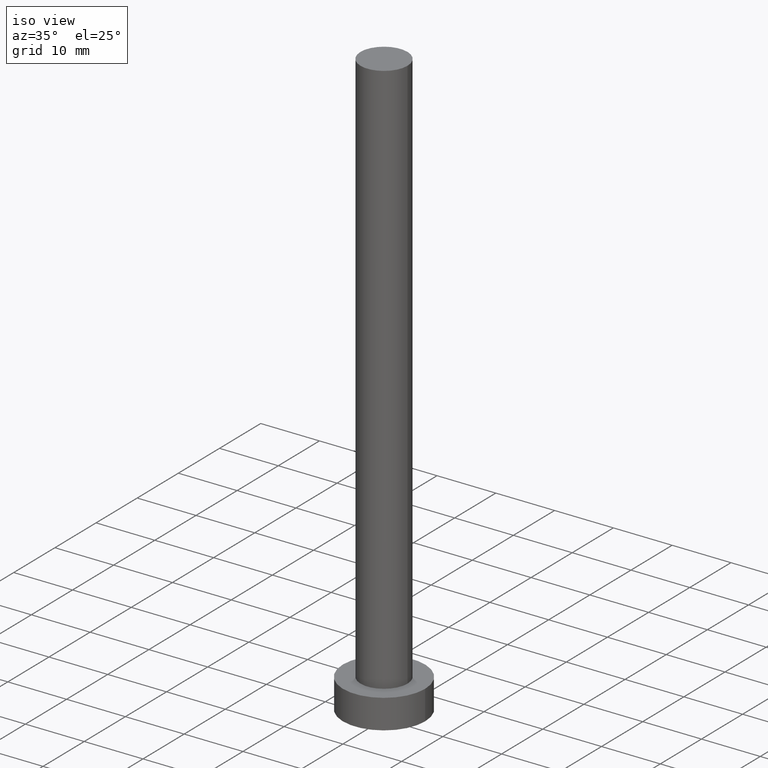
[diagram: clean part render]
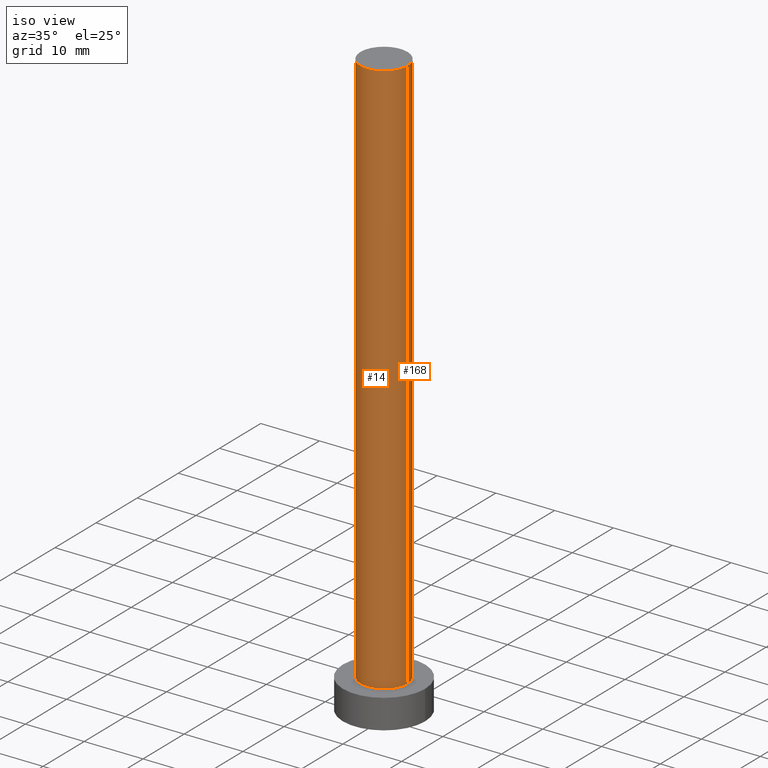
[diagram: same view with one multi-face feature highlighted, each face labeled with its STEP entity id]
A machine part, iso view. The highlighted faces form ONE feature: a constant-radius fillet chain: 2 tangent blend faces with common blend radius 4 mm. The faces share edges in the B-rep.
Their STEP definitions:
[1] entity #168 (Cylinder):
#4 = EDGE_CURVE ( 'NONE', #101, #65, #156, .T. ) ;
#10 = CYLINDRICAL_SURFACE ( 'NONE', #176, 4.000000000000000000 ) ;
#16 = CARTESIAN_POINT ( 'NONE',  ( 4.000000000000000000, 4.898587196589412829E-16, 100.0000000000000000 ) ) ;
#21 = ORIENTED_EDGE ( 'NONE', *, *, #191, .T. ) ;
#32 = VECTOR ( 'NONE', #246, 1000.000000000000000 ) ;
#37 = EDGE_CURVE ( 'NONE', #209, #101, #213, .T. ) ;
#38 = ORIENTED_EDGE ( 'NONE', *, *, #37, .F. ) ;
#50 = AXIS2_PLACEMENT_3D ( 'NONE', #234, #143, #198 ) ;
#57 = CARTESIAN_POINT ( 'NONE',  ( 0.000000000000000000, 0.000000000000000000, 100.0000000000000000 ) ) ;
#65 = VERTEX_POINT ( 'NONE', #73 ) ;
#73 = CARTESIAN_POINT ( 'NONE',  ( -4.000000000000000000, 0.000000000000000000, 5.000000000000000000 ) ) ;
#84 = EDGE_LOOP ( 'NONE', ( #38, #21, #161, #203 ) ) ;
#94 = DIRECTION ( 'NONE',  ( -1.000000000000000000, 0.000000000000000000, 0.000000000000000000 ) ) ;
#101 = VERTEX_POINT ( 'NONE', #217 ) ;
#104 = CIRCLE ( 'NONE', #50, 4.000000000000000000 ) ;
#113 = CARTESIAN_POINT ( 'NONE',  ( 0.000000000000000000, 0.000000000000000000, 100.0000000000000000 ) ) ;
#125 = CARTESIAN_POINT ( 'NONE',  ( 4.000000000000000000, 4.898587196589412829E-16, 5.000000000000000000 ) ) ;
#132 = DIRECTION ( 'NONE',  ( -0.000000000000000000, -0.000000000000000000, -1.000000000000000000 ) ) ;
#134 = LINE ( 'NONE', #16, #232 ) ;
#143 = DIRECTION ( 'NONE',  ( 0.000000000000000000, 0.000000000000000000, 1.000000000000000000 ) ) ;
#156 = LINE ( 'NONE', #220, #32 ) ;
#161 = ORIENTED_EDGE ( 'NONE', *, *, #236, .T. ) ;
#168 = ADVANCED_FACE ( 'NONE', ( #189 ), #10, .T. ) ;
#173 = DIRECTION ( 'NONE',  ( 0.000000000000000000, 0.000000000000000000, 1.000000000000000000 ) ) ;
#175 = DIRECTION ( 'NONE',  ( -0.000000000000000000, -0.000000000000000000, -1.000000000000000000 ) ) ;
#176 = AXIS2_PLACEMENT_3D ( 'NONE', #57, #132, #94 ) ;
#189 = FACE_OUTER_BOUND ( 'NONE', #84, .T. ) ;
#191 = EDGE_CURVE ( 'NONE', #209, #251, #134, .T. ) ;
#192 = DIRECTION ( 'NONE',  ( 1.000000000000000000, 0.000000000000000000, 0.000000000000000000 ) ) ;
#198 = DIRECTION ( 'NONE',  ( 1.000000000000000000, 0.000000000000000000, 0.000000000000000000 ) ) ;
#203 = ORIENTED_EDGE ( 'NONE', *, *, #4, .F. ) ;
#209 = VERTEX_POINT ( 'NONE', #245 ) ;
#213 = CIRCLE ( 'NONE', #253, 4.000000000000000000 ) ;
#217 = CARTESIAN_POINT ( 'NONE',  ( -4.000000000000000000, 0.000000000000000000, 100.0000000000000000 ) ) ;
#220 = CARTESIAN_POINT ( 'NONE',  ( -4.000000000000000000, 0.000000000000000000, 100.0000000000000000 ) ) ;
#232 = VECTOR ( 'NONE', #175, 1000.000000000000000 ) ;
#234 = CARTESIAN_POINT ( 'NONE',  ( 0.000000000000000000, 0.000000000000000000, 5.000000000000000000 ) ) ;
#236 = EDGE_CURVE ( 'NONE', #251, #65, #104, .T. ) ;
#245 = CARTESIAN_POINT ( 'NONE',  ( 4.000000000000000000, 4.898587196589412829E-16, 100.0000000000000000 ) ) ;
#246 = DIRECTION ( 'NONE',  ( -0.000000000000000000, -0.000000000000000000, -1.000000000000000000 ) ) ;
#251 = VERTEX_POINT ( 'NONE', #125 ) ;
#253 = AXIS2_PLACEMENT_3D ( 'NONE', #113, #173, #192 ) ;
[2] entity #14 (Cylinder):
#1 = FACE_OUTER_BOUND ( 'NONE', #44, .T. ) ;
#4 = EDGE_CURVE ( 'NONE', #101, #65, #156, .T. ) ;
#14 = ADVANCED_FACE ( 'NONE', ( #1 ), #69, .T. ) ;
#16 = CARTESIAN_POINT ( 'NONE',  ( 4.000000000000000000, 4.898587196589412829E-16, 100.0000000000000000 ) ) ;
#24 = CIRCLE ( 'NONE', #140, 4.000000000000000000 ) ;
#29 = DIRECTION ( 'NONE',  ( 0.000000000000000000, 0.000000000000000000, 1.000000000000000000 ) ) ;
#32 = VECTOR ( 'NONE', #246, 1000.000000000000000 ) ;
#44 = EDGE_LOOP ( 'NONE', ( #244, #121, #159, #196 ) ) ;
#52 = EDGE_CURVE ( 'NONE', #101, #209, #24, .T. ) ;
#61 = AXIS2_PLACEMENT_3D ( 'NONE', #183, #233, #71 ) ;
#65 = VERTEX_POINT ( 'NONE', #73 ) ;
#69 = CYLINDRICAL_SURFACE ( 'NONE', #61, 4.000000000000000000 ) ;
#71 = DIRECTION ( 'NONE',  ( -1.000000000000000000, 0.000000000000000000, 0.000000000000000000 ) ) ;
#73 = CARTESIAN_POINT ( 'NONE',  ( -4.000000000000000000, 0.000000000000000000, 5.000000000000000000 ) ) ;
#90 = CARTESIAN_POINT ( 'NONE',  ( 0.000000000000000000, 0.000000000000000000, 5.000000000000000000 ) ) ;
#95 = DIRECTION ( 'NONE',  ( 1.000000000000000000, 0.000000000000000000, 0.000000000000000000 ) ) ;
#101 = VERTEX_POINT ( 'NONE', #217 ) ;
#121 = ORIENTED_EDGE ( 'NONE', *, *, #52, .F. ) ;
#125 = CARTESIAN_POINT ( 'NONE',  ( 4.000000000000000000, 4.898587196589412829E-16, 5.000000000000000000 ) ) ;
#126 = EDGE_CURVE ( 'NONE', #65, #251, #151, .T. ) ;
#134 = LINE ( 'NONE', #16, #232 ) ;
#140 = AXIS2_PLACEMENT_3D ( 'NONE', #200, #29, #95 ) ;
#147 = DIRECTION ( 'NONE',  ( 1.000000000000000000, 0.000000000000000000, 0.000000000000000000 ) ) ;
#151 = CIRCLE ( 'NONE', #205, 4.000000000000000000 ) ;
#156 = LINE ( 'NONE', #220, #32 ) ;
#159 = ORIENTED_EDGE ( 'NONE', *, *, #4, .T. ) ;
#175 = DIRECTION ( 'NONE',  ( -0.000000000000000000, -0.000000000000000000, -1.000000000000000000 ) ) ;
#183 = CARTESIAN_POINT ( 'NONE',  ( 0.000000000000000000, 0.000000000000000000, 100.0000000000000000 ) ) ;
#191 = EDGE_CURVE ( 'NONE', #209, #251, #134, .T. ) ;
#196 = ORIENTED_EDGE ( 'NONE', *, *, #126, .T. ) ;
#200 = CARTESIAN_POINT ( 'NONE',  ( 0.000000000000000000, 0.000000000000000000, 100.0000000000000000 ) ) ;
#205 = AXIS2_PLACEMENT_3D ( 'NONE', #90, #238, #147 ) ;
#209 = VERTEX_POINT ( 'NONE', #245 ) ;
#217 = CARTESIAN_POINT ( 'NONE',  ( -4.000000000000000000, 0.000000000000000000, 100.0000000000000000 ) ) ;
#220 = CARTESIAN_POINT ( 'NONE',  ( -4.000000000000000000, 0.000000000000000000, 100.0000000000000000 ) ) ;
#232 = VECTOR ( 'NONE', #175, 1000.000000000000000 ) ;
#233 = DIRECTION ( 'NONE',  ( -0.000000000000000000, -0.000000000000000000, -1.000000000000000000 ) ) ;
#238 = DIRECTION ( 'NONE',  ( 0.000000000000000000, 0.000000000000000000, 1.000000000000000000 ) ) ;
#244 = ORIENTED_EDGE ( 'NONE', *, *, #191, .F. ) ;
#245 = CARTESIAN_POINT ( 'NONE',  ( 4.000000000000000000, 4.898587196589412829E-16, 100.0000000000000000 ) ) ;
#246 = DIRECTION ( 'NONE',  ( -0.000000000000000000, -0.000000000000000000, -1.000000000000000000 ) ) ;
#251 = VERTEX_POINT ( 'NONE', #125 ) ;